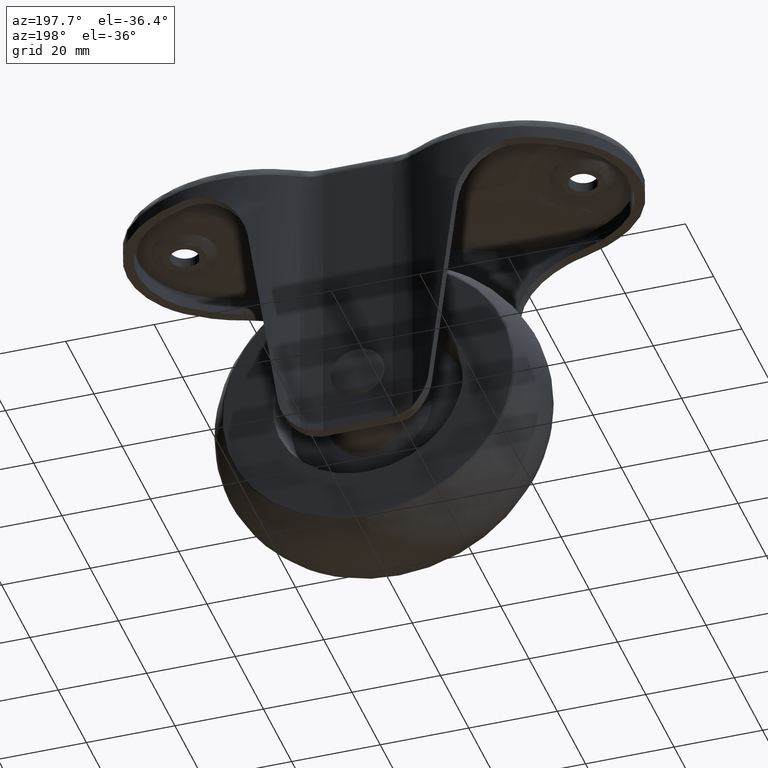
[diagram: clean part render]
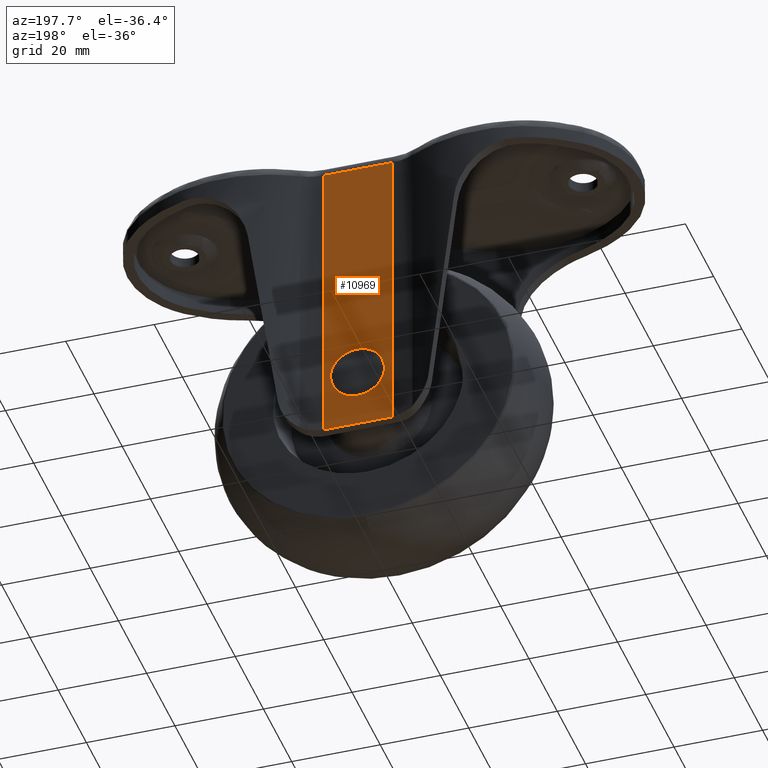
[diagram: same view with one face highlighted and labeled with its STEP entity id]
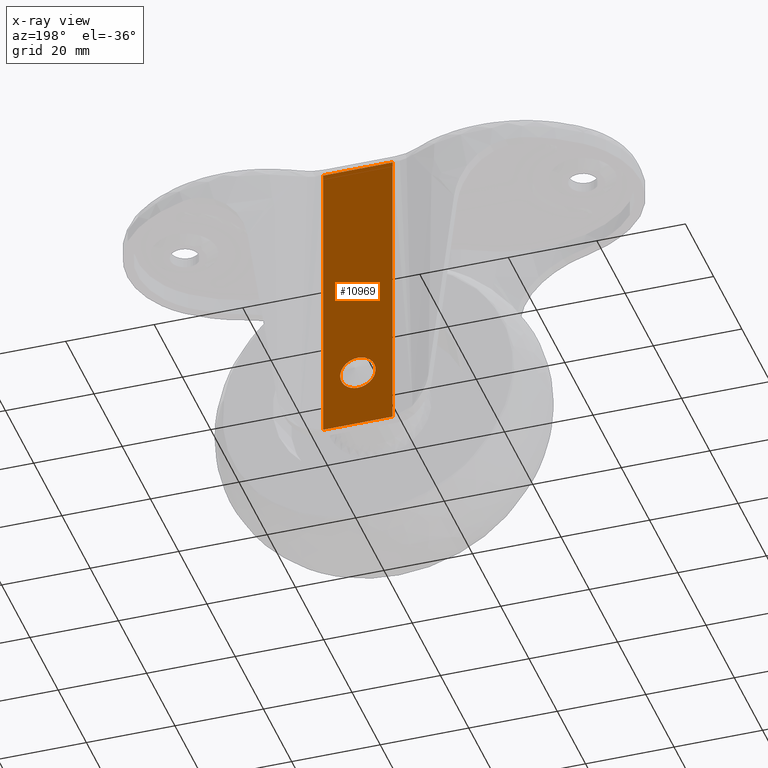
[diagram: x-ray of the same camera — body ghosted, the highlighted face saturated]
A machine part, auxiliary view. The second image highlights one B-rep face of the part: STEP entity #10969.
The next image is the same camera in x-ray: the body ghosted, the highlighted face saturated — about 0% of this face is hidden behind the body in this view.
In plain terms, the highlighted face is a freeform B-spline surface patch.
Its self-contained STEP definition (entity closure, byte-faithful):
#2861=CARTESIAN_POINT('',(3.999847692251507,18.500000000000000,-57.465093857413173));
#2862=VERTEX_POINT('',#2861);
#2868=CARTESIAN_POINT('',(0.0,18.500000000000000,-61.500000000000000));
#2869=VERTEX_POINT('',#2868);
#2870=CARTESIAN_POINT('',(3.999847692251507,18.500000000000000,-57.465093857413173));
#2871=CARTESIAN_POINT('',(4.0,18.500000000000000,-57.482546596123832));
#2872=CARTESIAN_POINT('',(4.0,18.500000000000000,-57.500000000000000));
#2873=CARTESIAN_POINT('',(4.000000000000000,18.500000000000000,-61.500000000000007));
#2874=CARTESIAN_POINT('',(0.0,18.500000000000000,-61.500000000000000));
#2882=(BOUNDED_CURVE()B_SPLINE_CURVE(2,(#2870,#2871,#2872,#2873,#2874),.UNSPECIFIED.,.F.,.U.)B_SPLINE_CURVE_WITH_KNOTS((3,2,3),(0.248460105612756,0.250000000000000,0.500000000000000),.UNSPECIFIED.)CURVE()GEOMETRIC_REPRESENTATION_ITEM()RATIONAL_B_SPLINE_CURVE((0.996414027979468,0.998195901505149,1.0,0.707106781186548,1.0))REPRESENTATION_ITEM(''));
#2883=EDGE_CURVE('',#2862,#2869,#2882,.T.);
#2885=CARTESIAN_POINT('',(-3.969064855278891,18.500000000000000,-57.996512008505292));
#2886=VERTEX_POINT('',#2885);
#2887=CARTESIAN_POINT('',(0.0,18.500000000000000,-61.500000000000000));
#2888=CARTESIAN_POINT('',(-3.530794400267468,18.500000000000000,-61.500000000000007));
#2889=CARTESIAN_POINT('',(-3.969064855278891,18.500000000000000,-57.996512008505292));
#2897=(BOUNDED_CURVE()B_SPLINE_CURVE(2,(#2887,#2888,#2889),.UNSPECIFIED.,.F.,.U.)B_SPLINE_CURVE_WITH_KNOTS((3,3),(0.500000000000000,0.728526071013495),.UNSPECIFIED.)CURVE()GEOMETRIC_REPRESENTATION_ITEM()RATIONAL_B_SPLINE_CURVE((1.0,0.732265053912263,0.954005430244050))REPRESENTATION_ITEM(''));
#2898=EDGE_CURVE('',#2869,#2886,#2897,.T.);
#2948=CARTESIAN_POINT('',(0.0,18.500000000000000,-53.500000000000007));
#2949=VERTEX_POINT('',#2948);
#2950=CARTESIAN_POINT('',(-3.969064855278891,18.499999999999996,-57.996512008505292));
#2951=CARTESIAN_POINT('',(-4.000000000000000,18.499999999999996,-57.749219710322130));
#2952=CARTESIAN_POINT('',(-4.0,18.500000000000000,-57.500000000000000));
#2953=CARTESIAN_POINT('',(-4.000000000000000,18.500000000000000,-53.500000000000007));
#2954=CARTESIAN_POINT('',(0.0,18.500000000000000,-53.500000000000007));
#2962=(BOUNDED_CURVE()B_SPLINE_CURVE(2,(#2950,#2951,#2952,#2953,#2954),.UNSPECIFIED.,.F.,.U.)B_SPLINE_CURVE_WITH_KNOTS((3,2,3),(0.728526071013495,0.750000000000000,1.0),.UNSPECIFIED.)CURVE()GEOMETRIC_REPRESENTATION_ITEM()RATIONAL_B_SPLINE_CURVE((0.954005430244049,0.974841727274284,1.0,0.707106781186548,1.0))REPRESENTATION_ITEM(''));
#2963=EDGE_CURVE('',#2886,#2949,#2962,.T.);
#2965=CARTESIAN_POINT('',(0.0,18.500000000000000,-53.500000000000007));
#2966=CARTESIAN_POINT('',(3.965244841203475,18.500000000000004,-53.499999999999993));
#2967=CARTESIAN_POINT('',(3.999847692251507,18.500000000000000,-57.465093857413173));
#2975=(BOUNDED_CURVE()B_SPLINE_CURVE(2,(#2965,#2966,#2967),.UNSPECIFIED.,.F.,.U.)B_SPLINE_CURVE_WITH_KNOTS((3,3),(0.0,0.248460105612756),.UNSPECIFIED.)CURVE()GEOMETRIC_REPRESENTATION_ITEM()RATIONAL_B_SPLINE_CURVE((1.0,0.708910879681399,0.996414027979468))REPRESENTATION_ITEM(''));
#2976=EDGE_CURVE('',#2949,#2862,#2975,.T.);
#4895=CARTESIAN_POINT('',(-7.843161000000090,18.500000000000000,-3.0));
#4896=VERTEX_POINT('',#4895);
#5022=CARTESIAN_POINT('',(7.843160999999901,18.500000000000000,-3.0));
#5023=VERTEX_POINT('',#5022);
#5037=CARTESIAN_POINT('',(-7.843161000000090,18.500000000000000,-3.0));
#5038=CARTESIAN_POINT('',(7.843160999999901,18.500000000000000,-3.0));
#5039=QUASI_UNIFORM_CURVE('',1,(#5037,#5038),.UNSPECIFIED.,.F.,.U.);
#5040=EDGE_CURVE('',#4896,#5023,#5039,.T.);
#10936=CARTESIAN_POINT('',(-8.626692900748923,18.500000000000000,-74.396599868202813));
#10937=CARTESIAN_POINT('',(-8.626692900748923,18.500000000000000,0.396601692104932));
#10938=CARTESIAN_POINT('',(8.626693181242029,18.500000000000000,-74.396599868202813));
#10939=CARTESIAN_POINT('',(8.626693181242029,18.500000000000000,0.396601692104932));
#10940=B_SPLINE_SURFACE_WITH_KNOTS('',1,1,((#10936,#10938),(#10937,#10939)),.UNSPECIFIED.,.F.,.F.,.U.,(2,2),(2,2),(0.0,74.793201560307750),(0.0,17.253386081990950),.UNSPECIFIED.);
#10941=CARTESIAN_POINT('',(-7.843161000000090,18.500000000000000,-71.0));
#10942=VERTEX_POINT('',#10941);
#10943=CARTESIAN_POINT('',(-7.843161000000090,18.500000000000000,-3.0));
#10944=CARTESIAN_POINT('',(-7.843161000000090,18.500000000000000,-71.0));
#10945=QUASI_UNIFORM_CURVE('',1,(#10943,#10944),.UNSPECIFIED.,.F.,.U.);
#10946=EDGE_CURVE('',#4896,#10942,#10945,.T.);
#10947=ORIENTED_EDGE('',*,*,#10946,.F.);
#10948=ORIENTED_EDGE('',*,*,#5040,.T.);
#10949=CARTESIAN_POINT('',(7.843160999999901,18.500000000000000,-71.0));
#10950=VERTEX_POINT('',#10949);
#10951=CARTESIAN_POINT('',(7.843160999999901,18.500000000000000,-3.0));
#10952=CARTESIAN_POINT('',(7.843160999999901,18.500000000000000,-71.0));
#10953=QUASI_UNIFORM_CURVE('',1,(#10951,#10952),.UNSPECIFIED.,.F.,.U.);
#10954=EDGE_CURVE('',#5023,#10950,#10953,.T.);
#10955=ORIENTED_EDGE('',*,*,#10954,.T.);
#10956=CARTESIAN_POINT('',(-7.843161000000090,18.500000000000000,-71.0));
#10957=CARTESIAN_POINT('',(7.843160999999901,18.500000000000000,-71.0));
#10958=QUASI_UNIFORM_CURVE('',1,(#10956,#10957),.UNSPECIFIED.,.F.,.U.);
#10959=EDGE_CURVE('',#10942,#10950,#10958,.T.);
#10960=ORIENTED_EDGE('',*,*,#10959,.F.);
#10961=EDGE_LOOP('',(#10947,#10948,#10955,#10960));
#10962=FACE_OUTER_BOUND('',#10961,.T.);
#10963=ORIENTED_EDGE('',*,*,#2976,.F.);
#10964=ORIENTED_EDGE('',*,*,#2963,.F.);
#10965=ORIENTED_EDGE('',*,*,#2898,.F.);
#10966=ORIENTED_EDGE('',*,*,#2883,.F.);
#10967=EDGE_LOOP('',(#10963,#10964,#10965,#10966));
#10968=FACE_BOUND('',#10967,.T.);
#10969=ADVANCED_FACE('',(#10962,#10968),#10940,.T.);